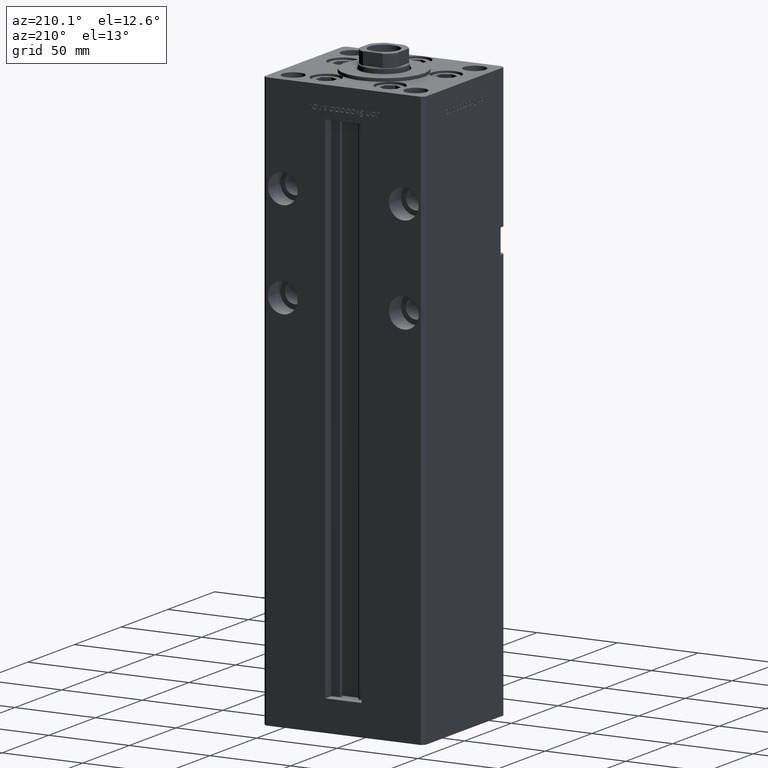
[diagram: clean part render]
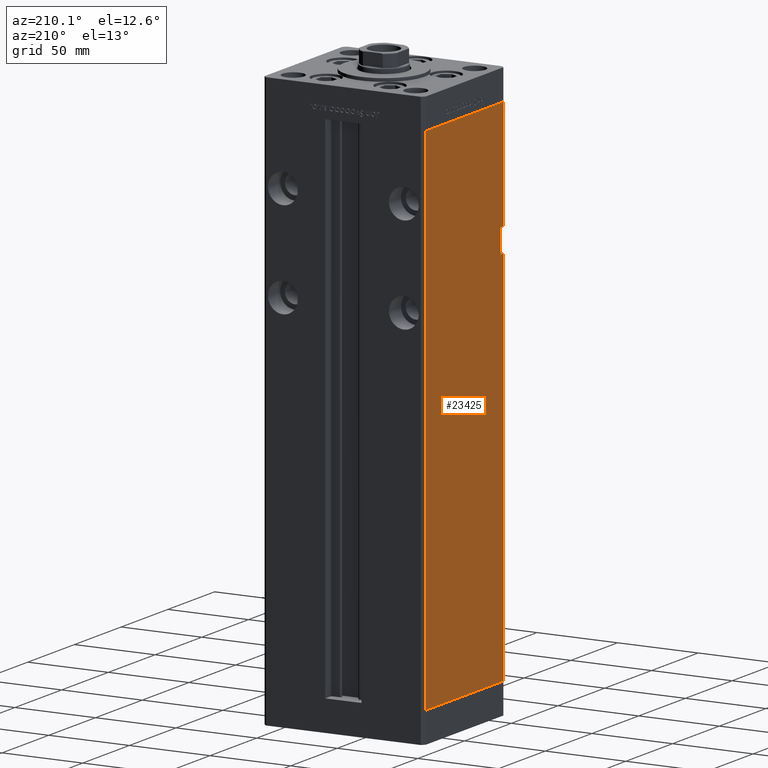
[diagram: same view with one face highlighted and labeled with its STEP entity id]
A machine part, auxiliary view. The second image highlights one B-rep face of the part: STEP entity #23425.
In plain terms, the highlighted planar face has unit normal (1, 0, 0).
Its self-contained STEP definition (entity closure, byte-faithful):
#119 = VECTOR ( 'NONE', #21549, 1000.000000000000000 ) ;
#1835 = VERTEX_POINT ( 'NONE', #37860 ) ;
#4320 = ORIENTED_EDGE ( 'NONE', *, *, #10139, .T. ) ;
#4388 = VECTOR ( 'NONE', #37754, 1000.000000000000000 ) ;
#5022 = ORIENTED_EDGE ( 'NONE', *, *, #6121, .F. ) ;
#5982 = LINE ( 'NONE', #25643, #4388 ) ;
#6121 = EDGE_CURVE ( 'NONE', #34504, #50272, #23574, .T. ) ;
#6735 = CARTESIAN_POINT ( 'NONE',  ( -49.99999999999998579, -41.49999999999999289, 0.000000000000000000 ) ) ;
#7172 = DIRECTION ( 'NONE',  ( -3.344045254895050480E-16, 1.000000000000000000, 0.000000000000000000 ) ) ;
#9018 = CARTESIAN_POINT ( 'NONE',  ( -50.00000000000001421, 41.49999999999999289, 0.000000000000000000 ) ) ;
#9790 = LINE ( 'NONE', #26193, #42738 ) ;
#10139 = EDGE_CURVE ( 'NONE', #34504, #26310, #37733, .T. ) ;
#10207 = CARTESIAN_POINT ( 'NONE',  ( -50.00000000000001421, 41.49999999999999289, 318.5000000000000000 ) ) ;
#10539 = LINE ( 'NONE', #30979, #20661 ) ;
#11463 = CARTESIAN_POINT ( 'NONE',  ( -50.00000000000001421, 41.49999999999999289, 318.5000000000000000 ) ) ;
#12045 = VECTOR ( 'NONE', #49872, 1000.000000000000000 ) ;
#13556 = CARTESIAN_POINT ( 'NONE',  ( -49.99999999999998579, -38.50000000000000000, 235.0000000000000000 ) ) ;
#14963 = CARTESIAN_POINT ( 'NONE',  ( -49.99999999999998579, -38.50000000000000000, 250.0000000000000000 ) ) ;
#15018 = CARTESIAN_POINT ( 'NONE',  ( -49.99999999999998579, -41.49999999999999289, 318.5000000000000000 ) ) ;
#17349 = VECTOR ( 'NONE', #31378, 1000.000000000000000 ) ;
#18657 = CARTESIAN_POINT ( 'NONE',  ( -49.99999999999998579, -41.49999999999999289, 250.0000000000000000 ) ) ;
#18867 = VERTEX_POINT ( 'NONE', #28765 ) ;
#19391 = VECTOR ( 'NONE', #45509, 1000.000000000000000 ) ;
#20093 = EDGE_CURVE ( 'NONE', #1835, #21552, #9790, .T. ) ;
#20151 = EDGE_LOOP ( 'NONE', ( #38788, #21335, #5022, #4320, #42041, #30224, #26197, #30244 ) ) ;
#20661 = VECTOR ( 'NONE', #27203, 1000.000000000000000 ) ;
#21335 = ORIENTED_EDGE ( 'NONE', *, *, #52220, .F. ) ;
#21549 = DIRECTION ( 'NONE',  ( 3.344045254895050973E-16, -1.000000000000000000, 0.000000000000000000 ) ) ;
#21552 = VERTEX_POINT ( 'NONE', #6735 ) ;
#22253 = AXIS2_PLACEMENT_3D ( 'NONE', #11463, #28679, #7172 ) ;
#23093 = DIRECTION ( 'NONE',  ( -0.000000000000000000, -0.000000000000000000, -1.000000000000000000 ) ) ;
#23425 = ADVANCED_FACE ( 'NONE', ( #35937 ), #43996, .F. ) ;
#23574 = LINE ( 'NONE', #14963, #17349 ) ;
#25643 = CARTESIAN_POINT ( 'NONE',  ( -49.99999999999998579, -38.50000000000000000, 235.0000000000000000 ) ) ;
#26193 = CARTESIAN_POINT ( 'NONE',  ( -49.99999999999998579, -41.49999999999999289, 318.5000000000000000 ) ) ;
#26197 = ORIENTED_EDGE ( 'NONE', *, *, #27101, .T. ) ;
#26310 = VERTEX_POINT ( 'NONE', #18657 ) ;
#27101 = EDGE_CURVE ( 'NONE', #18867, #50611, #10539, .T. ) ;
#27203 = DIRECTION ( 'NONE',  ( -0.000000000000000000, -0.000000000000000000, -1.000000000000000000 ) ) ;
#28679 = DIRECTION ( 'NONE',  ( 1.000000000000000000, 3.344045254895050480E-16, -0.000000000000000000 ) ) ;
#28765 = CARTESIAN_POINT ( 'NONE',  ( -50.00000000000001421, 41.49999999999999289, 318.5000000000000000 ) ) ;
#29051 = CARTESIAN_POINT ( 'NONE',  ( -50.00000000000001421, 41.49999999999999289, 0.000000000000000000 ) ) ;
#30224 = ORIENTED_EDGE ( 'NONE', *, *, #32426, .F. ) ;
#30244 = ORIENTED_EDGE ( 'NONE', *, *, #50903, .T. ) ;
#30979 = CARTESIAN_POINT ( 'NONE',  ( -50.00000000000001421, 41.49999999999999289, 318.5000000000000000 ) ) ;
#31129 = VERTEX_POINT ( 'NONE', #35331 ) ;
#31378 = DIRECTION ( 'NONE',  ( 0.000000000000000000, 0.000000000000000000, -1.000000000000000000 ) ) ;
#32426 = EDGE_CURVE ( 'NONE', #18867, #31129, #43001, .T. ) ;
#32676 = VECTOR ( 'NONE', #23093, 1000.000000000000000 ) ;
#33224 = LINE ( 'NONE', #9018, #12045 ) ;
#34504 = VERTEX_POINT ( 'NONE', #43299 ) ;
#35331 = CARTESIAN_POINT ( 'NONE',  ( -49.99999999999998579, -41.49999999999999289, 318.5000000000000000 ) ) ;
#35937 = FACE_OUTER_BOUND ( 'NONE', #20151, .T. ) ;
#37465 = CARTESIAN_POINT ( 'NONE',  ( -49.99999999999998579, -38.50000000000000000, 250.0000000000000000 ) ) ;
#37733 = LINE ( 'NONE', #37465, #19391 ) ;
#37754 = DIRECTION ( 'NONE',  ( -0.000000000000000000, -1.000000000000000000, -0.000000000000000000 ) ) ;
#37860 = CARTESIAN_POINT ( 'NONE',  ( -49.99999999999998579, -41.49999999999999289, 235.0000000000000000 ) ) ;
#38788 = ORIENTED_EDGE ( 'NONE', *, *, #20093, .F. ) ;
#42041 = ORIENTED_EDGE ( 'NONE', *, *, #51665, .F. ) ;
#42567 = DIRECTION ( 'NONE',  ( -0.000000000000000000, -0.000000000000000000, -1.000000000000000000 ) ) ;
#42738 = VECTOR ( 'NONE', #42567, 1000.000000000000000 ) ;
#42984 = LINE ( 'NONE', #15018, #32676 ) ;
#43001 = LINE ( 'NONE', #10207, #119 ) ;
#43299 = CARTESIAN_POINT ( 'NONE',  ( -49.99999999999998579, -38.50000000000000000, 250.0000000000000000 ) ) ;
#43996 = PLANE ( 'NONE',  #22253 ) ;
#45509 = DIRECTION ( 'NONE',  ( -0.000000000000000000, -1.000000000000000000, -0.000000000000000000 ) ) ;
#49872 = DIRECTION ( 'NONE',  ( 3.344045254895050973E-16, -1.000000000000000000, 0.000000000000000000 ) ) ;
#50272 = VERTEX_POINT ( 'NONE', #13556 ) ;
#50611 = VERTEX_POINT ( 'NONE', #29051 ) ;
#50903 = EDGE_CURVE ( 'NONE', #50611, #21552, #33224, .T. ) ;
#51665 = EDGE_CURVE ( 'NONE', #31129, #26310, #42984, .T. ) ;
#52220 = EDGE_CURVE ( 'NONE', #50272, #1835, #5982, .T. ) ;